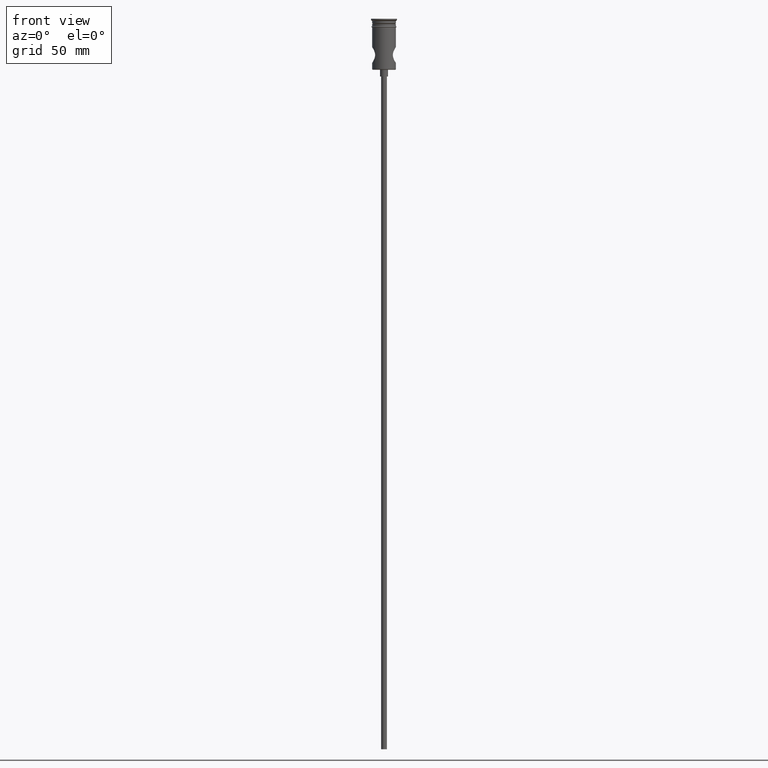
[diagram: clean part render]
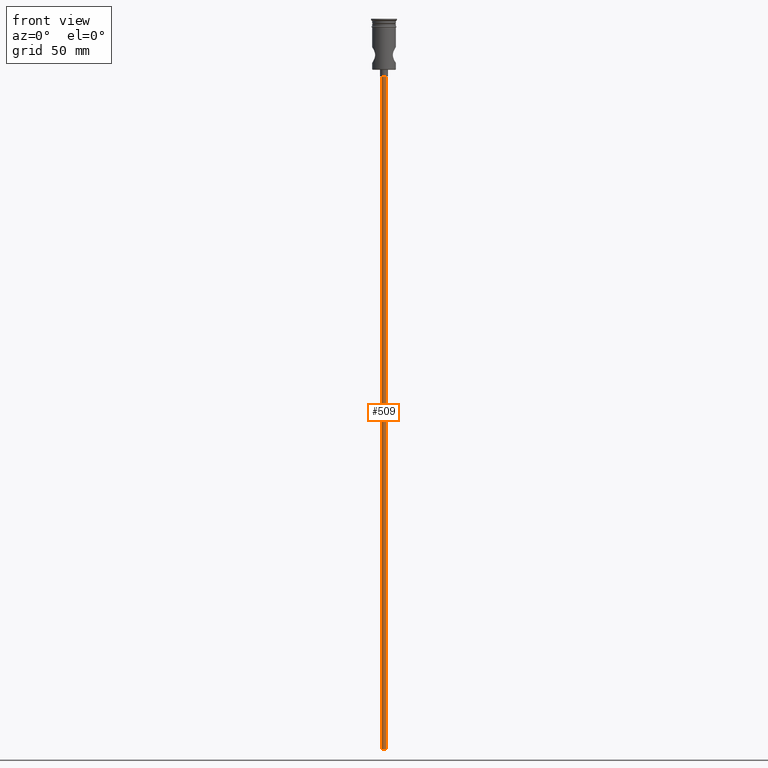
[diagram: same view with one face highlighted and labeled with its STEP entity id]
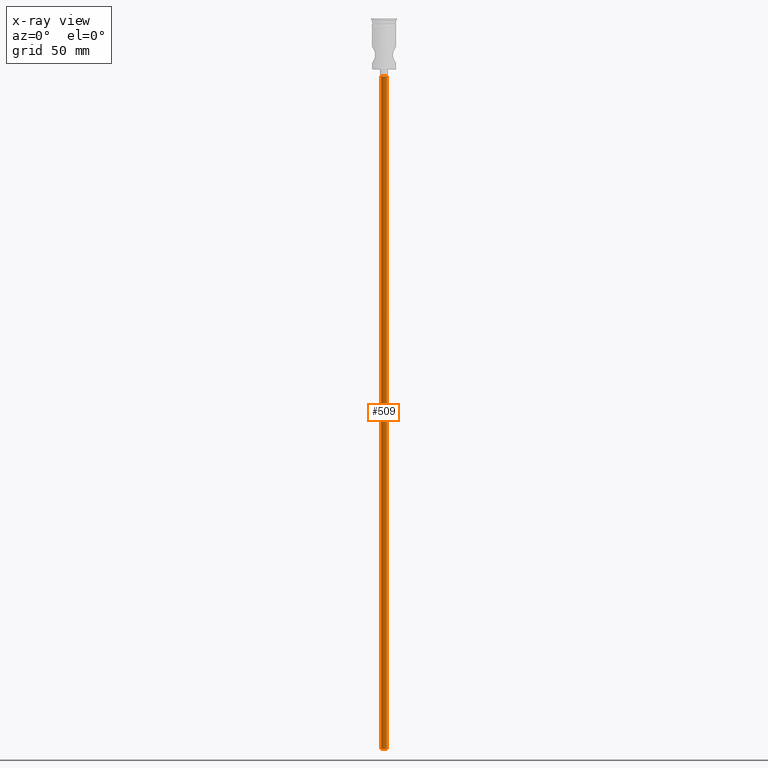
[diagram: x-ray of the same camera — body ghosted, the highlighted face saturated]
A machine part, front view. The second image highlights one B-rep face of the part: STEP entity #509.
The next image is the same camera in x-ray: the body ghosted, the highlighted face saturated — about 0% of this face is hidden behind the body in this view.
In plain terms, the highlighted cylindrical surface (edge-blend (fillet) strip) has radius 1.25 mm, axis along (-0, -0, 1).
Its self-contained STEP definition (entity closure, byte-faithful):
#18 = EDGE_LOOP ( 'NONE', ( #1086, #959, #374, #536 ) ) ;
#19 = DIRECTION ( 'NONE',  ( -0.000000000000000000, -0.000000000000000000, 1.000000000000000000 ) ) ;
#64 = VERTEX_POINT ( 'NONE', #559 ) ;
#69 = CARTESIAN_POINT ( 'NONE',  ( 1.250000000000000000, 0.000000000000000000, -25.50000000000000000 ) ) ;
#86 = VERTEX_POINT ( 'NONE', #1118 ) ;
#96 = FACE_OUTER_BOUND ( 'NONE', #18, .T. ) ;
#137 = CIRCLE ( 'NONE', #1160, 1.250000000000000000 ) ;
#154 = EDGE_CURVE ( 'NONE', #86, #1336, #772, .T. ) ;
#235 = CARTESIAN_POINT ( 'NONE',  ( 0.000000000000000000, 0.000000000000000000, -322.5000000000000000 ) ) ;
#246 = AXIS2_PLACEMENT_3D ( 'NONE', #640, #1085, #541 ) ;
#374 = ORIENTED_EDGE ( 'NONE', *, *, #1407, .T. ) ;
#438 = CIRCLE ( 'NONE', #246, 1.250000000000000000 ) ;
#467 = DIRECTION ( 'NONE',  ( 0.000000000000000000, 0.000000000000000000, -1.000000000000000000 ) ) ;
#505 = LINE ( 'NONE', #597, #1081 ) ;
#509 = ADVANCED_FACE ( 'NONE', ( #96 ), #531, .T. ) ;
#531 = CYLINDRICAL_SURFACE ( 'NONE', #683, 1.250000000000000000 ) ;
#536 = ORIENTED_EDGE ( 'NONE', *, *, #1257, .T. ) ;
#541 = DIRECTION ( 'NONE',  ( -1.000000000000000000, 0.000000000000000000, 0.000000000000000000 ) ) ;
#545 = DIRECTION ( 'NONE',  ( -1.000000000000000000, 0.000000000000000000, 0.000000000000000000 ) ) ;
#559 = CARTESIAN_POINT ( 'NONE',  ( 1.250000000000000000, 0.000000000000000000, -322.5000000000000000 ) ) ;
#568 = CARTESIAN_POINT ( 'NONE',  ( -1.250000000000000000, 1.530808498934191571E-16, -322.5000000000000000 ) ) ;
#597 = CARTESIAN_POINT ( 'NONE',  ( 1.250000000000000000, 0.000000000000000000, -322.5000000000000000 ) ) ;
#640 = CARTESIAN_POINT ( 'NONE',  ( 0.000000000000000000, 0.000000000000000000, -25.50000000000000000 ) ) ;
#683 = AXIS2_PLACEMENT_3D ( 'NONE', #1404, #847, #1185 ) ;
#698 = DIRECTION ( 'NONE',  ( -0.000000000000000000, -0.000000000000000000, 1.000000000000000000 ) ) ;
#772 = LINE ( 'NONE', #568, #897 ) ;
#847 = DIRECTION ( 'NONE',  ( -0.000000000000000000, -0.000000000000000000, 1.000000000000000000 ) ) ;
#897 = VECTOR ( 'NONE', #19, 1000.000000000000000 ) ;
#959 = ORIENTED_EDGE ( 'NONE', *, *, #975, .F. ) ;
#975 = EDGE_CURVE ( 'NONE', #64, #86, #137, .T. ) ;
#1006 = CARTESIAN_POINT ( 'NONE',  ( -1.250000000000000000, 1.530808498934191571E-16, -25.50000000000000000 ) ) ;
#1081 = VECTOR ( 'NONE', #698, 1000.000000000000000 ) ;
#1085 = DIRECTION ( 'NONE',  ( 0.000000000000000000, 0.000000000000000000, -1.000000000000000000 ) ) ;
#1086 = ORIENTED_EDGE ( 'NONE', *, *, #154, .F. ) ;
#1118 = CARTESIAN_POINT ( 'NONE',  ( -1.250000000000000000, 1.530808498934191571E-16, -322.5000000000000000 ) ) ;
#1160 = AXIS2_PLACEMENT_3D ( 'NONE', #235, #467, #545 ) ;
#1185 = DIRECTION ( 'NONE',  ( 1.000000000000000000, 0.000000000000000000, 0.000000000000000000 ) ) ;
#1257 = EDGE_CURVE ( 'NONE', #1402, #1336, #438, .T. ) ;
#1336 = VERTEX_POINT ( 'NONE', #1006 ) ;
#1402 = VERTEX_POINT ( 'NONE', #69 ) ;
#1404 = CARTESIAN_POINT ( 'NONE',  ( 0.000000000000000000, 0.000000000000000000, -322.5000000000000000 ) ) ;
#1407 = EDGE_CURVE ( 'NONE', #64, #1402, #505, .T. ) ;